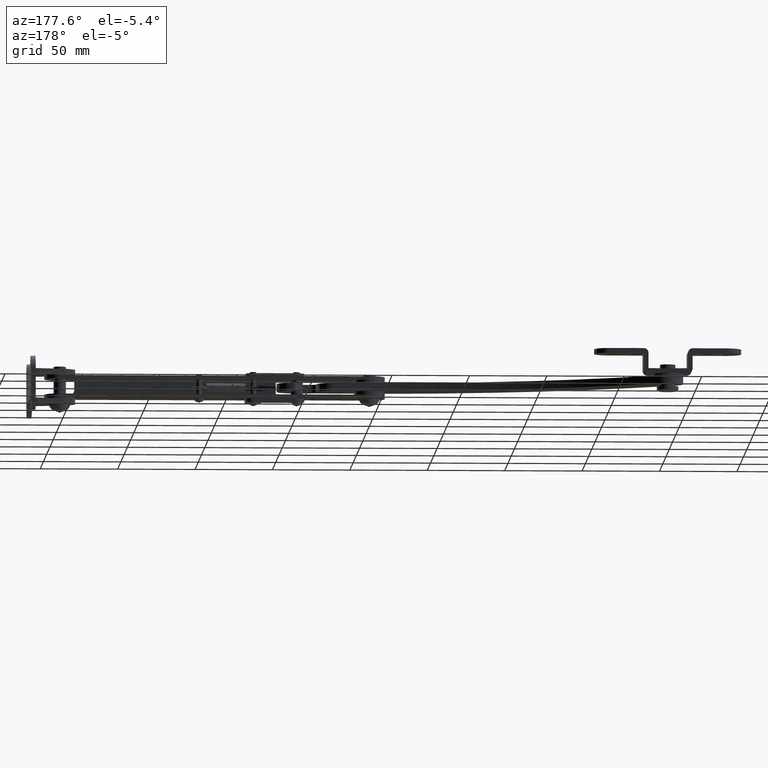
[diagram: clean part render]
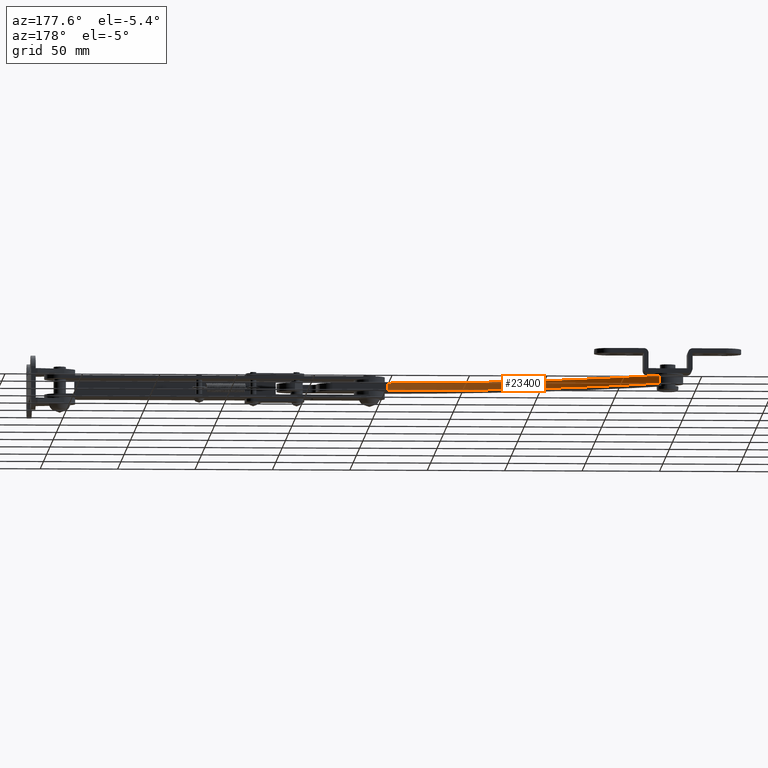
[diagram: same view with one face highlighted and labeled with its STEP entity id]
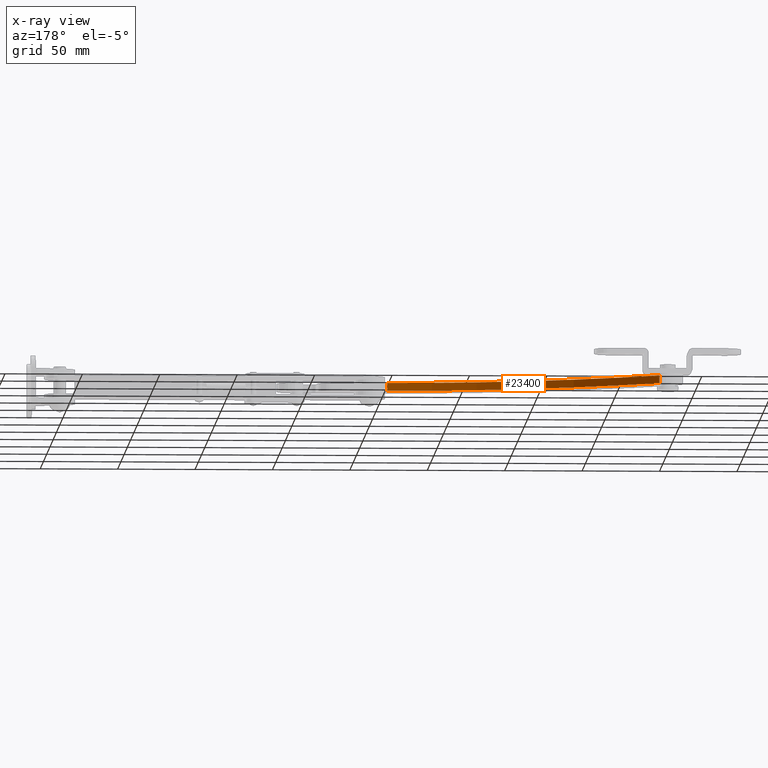
[diagram: x-ray of the same camera — body ghosted, the highlighted face saturated]
A machine part, auxiliary view. The second image highlights one B-rep face of the part: STEP entity #23400.
The next image is the same camera in x-ray: the body ghosted, the highlighted face saturated — about 0% of this face is hidden behind the body in this view.
In plain terms, the highlighted face is a freeform B-spline surface patch.
Its self-contained STEP definition (entity closure, byte-faithful):
#23305=CARTESIAN_POINT('',(-384.371410625373020,70.454998101325700,2.499999999999945));
#23306=VERTEX_POINT('',#23305);
#23322=CARTESIAN_POINT('',(-384.371410625373020,70.454998101325700,-2.499999999999945));
#23323=VERTEX_POINT('',#23322);
#23324=CARTESIAN_POINT('',(-384.371410625373020,70.454998101325700,-2.499999999999945));
#23325=CARTESIAN_POINT('',(-384.371410625373020,70.454998101325700,2.499999999999945));
#23326=QUASI_UNIFORM_CURVE('',1,(#23324,#23325),.UNSPECIFIED.,.F.,.U.);
#23327=EDGE_CURVE('',#23323,#23306,#23326,.T.);
#23348=CARTESIAN_POINT('',(-202.167572723690740,10.006733720702222,-2.624999999999943));
#23349=CARTESIAN_POINT('',(-202.167572723690740,10.006733720702222,2.628124999999943));
#23350=CARTESIAN_POINT('',(-308.164827511154500,10.704265539050850,-2.624999999999943));
#23351=CARTESIAN_POINT('',(-308.164827511154500,10.704265539050850,2.628124999999942));
#23352=CARTESIAN_POINT('',(-391.672186337245820,75.991519999677152,-2.624999999999943));
#23353=CARTESIAN_POINT('',(-391.672186337245820,75.991519999677152,2.628124999999942));
#23361=(BOUNDED_SURFACE()B_SPLINE_SURFACE(1,2,((#23348,#23350,#23352),(#23349,#23351,#23353)),.UNSPECIFIED.,.F.,.F.,.U.)B_SPLINE_SURFACE_WITH_KNOTS((2,2),(3,3),(0.0,5.253124999999885),(3.059857124328614,209.256366020202710),.UNSPECIFIED.)GEOMETRIC_REPRESENTATION_ITEM()RATIONAL_B_SPLINE_SURFACE(((0.998300629322298,0.941831934145209,0.991779492954046),(0.998300629322298,0.941831934145209,0.991779492954046)))REPRESENTATION_ITEM('')SURFACE());
#23362=CARTESIAN_POINT('',(-211.270921621366990,10.199935711989699,2.499999999999945));
#23363=VERTEX_POINT('',#23362);
#23364=CARTESIAN_POINT('',(-384.371410625373070,70.454998101325771,2.499999999999945));
#23365=CARTESIAN_POINT('',(-307.111512999859880,13.638197597696639,2.499999999999945));
#23366=CARTESIAN_POINT('',(-211.270921621366990,10.199935711989680,2.499999999999945));
#23374=(BOUNDED_CURVE()B_SPLINE_CURVE(2,(#23364,#23365,#23366),.UNSPECIFIED.,.F.,.U.)CURVE()GEOMETRIC_REPRESENTATION_ITEM()QUASI_UNIFORM_CURVE()RATIONAL_B_SPLINE_CURVE((1.0,0.955597511157702,1.0))REPRESENTATION_ITEM(''));
#23375=EDGE_CURVE('',#23306,#23363,#23374,.T.);
#23376=ORIENTED_EDGE('',*,*,#23375,.T.);
#23377=CARTESIAN_POINT('',(-211.270921621366990,10.199935711989699,-2.499999999999945));
#23378=VERTEX_POINT('',#23377);
#23379=CARTESIAN_POINT('',(-211.270921621366990,10.199935711989699,-2.499999999999945));
#23380=CARTESIAN_POINT('',(-211.270921621366990,10.199935711989699,2.499999999999945));
#23381=QUASI_UNIFORM_CURVE('',1,(#23379,#23380),.UNSPECIFIED.,.F.,.U.);
#23382=EDGE_CURVE('',#23378,#23363,#23381,.T.);
#23383=ORIENTED_EDGE('',*,*,#23382,.F.);
#23384=CARTESIAN_POINT('',(-384.371410625373070,70.454998101325771,-2.499999999999945));
#23385=CARTESIAN_POINT('',(-307.111512999859880,13.638197597696639,-2.499999999999945));
#23386=CARTESIAN_POINT('',(-211.270921621366990,10.199935711989680,-2.499999999999945));
#23394=(BOUNDED_CURVE()B_SPLINE_CURVE(2,(#23384,#23385,#23386),.UNSPECIFIED.,.F.,.U.)CURVE()GEOMETRIC_REPRESENTATION_ITEM()QUASI_UNIFORM_CURVE()RATIONAL_B_SPLINE_CURVE((1.0,0.955597511157702,1.0))REPRESENTATION_ITEM(''));
#23395=EDGE_CURVE('',#23323,#23378,#23394,.T.);
#23396=ORIENTED_EDGE('',*,*,#23395,.F.);
#23397=ORIENTED_EDGE('',*,*,#23327,.T.);
#23398=EDGE_LOOP('',(#23376,#23383,#23396,#23397));
#23399=FACE_OUTER_BOUND('',#23398,.T.);
#23400=ADVANCED_FACE('',(#23399),#23361,.F.);